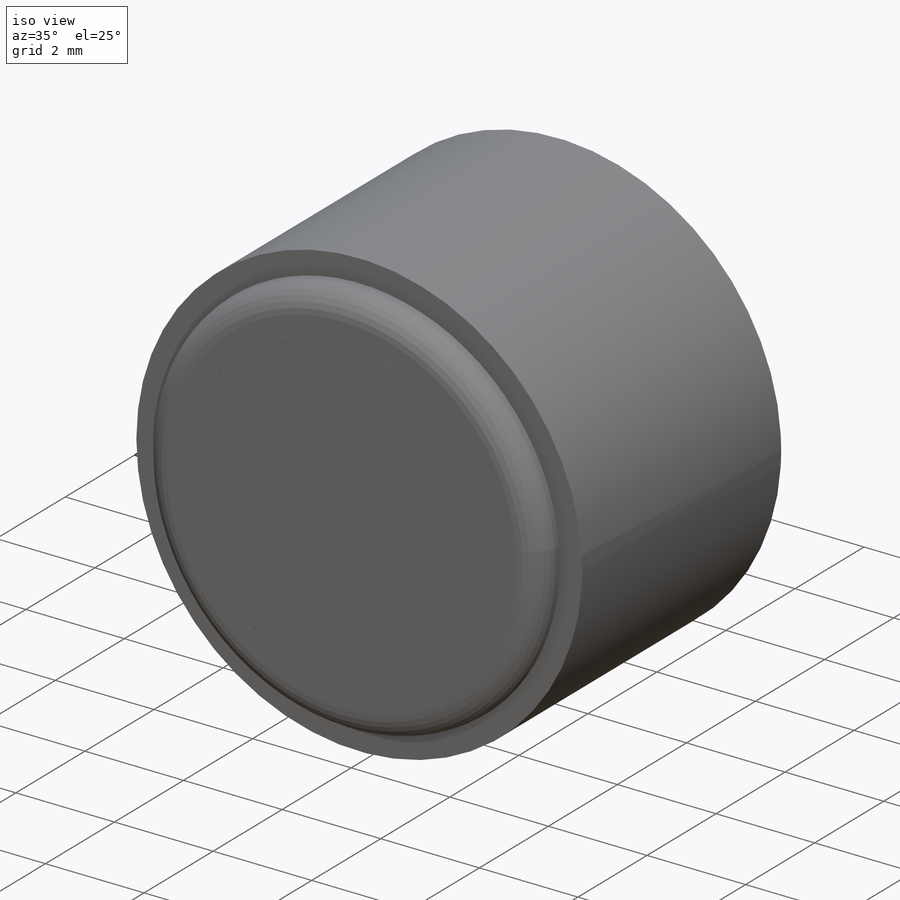
[diagram: iso view]
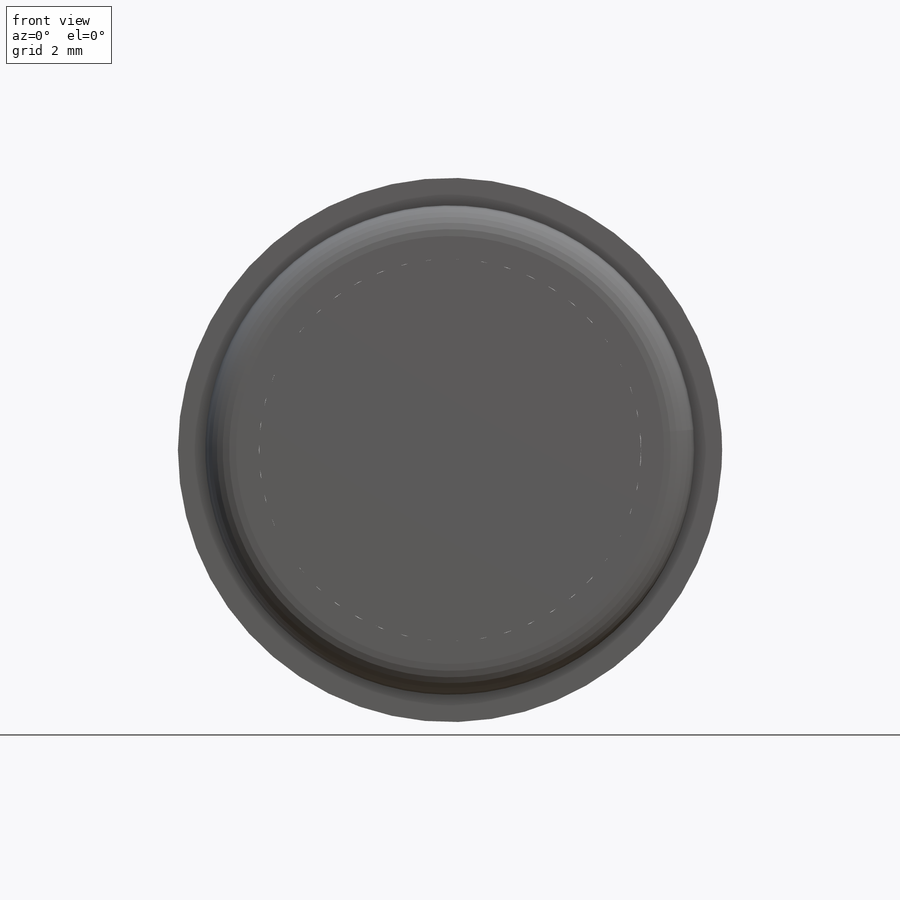
[diagram: front view]
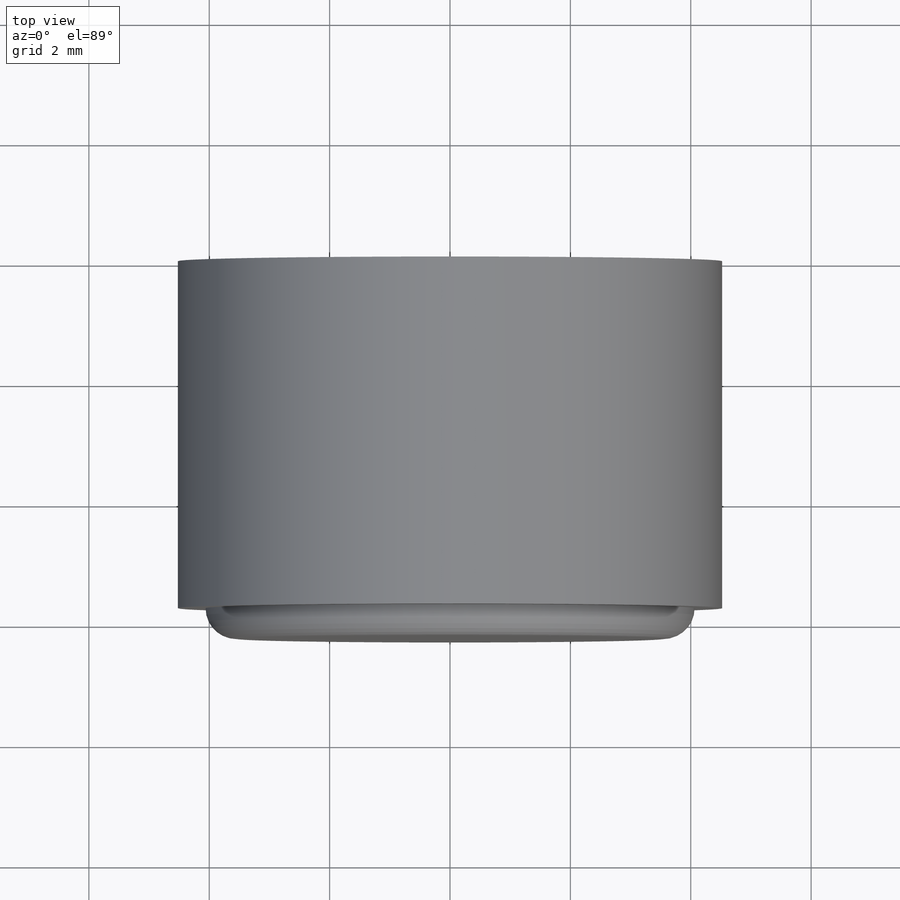
[diagram: top view]
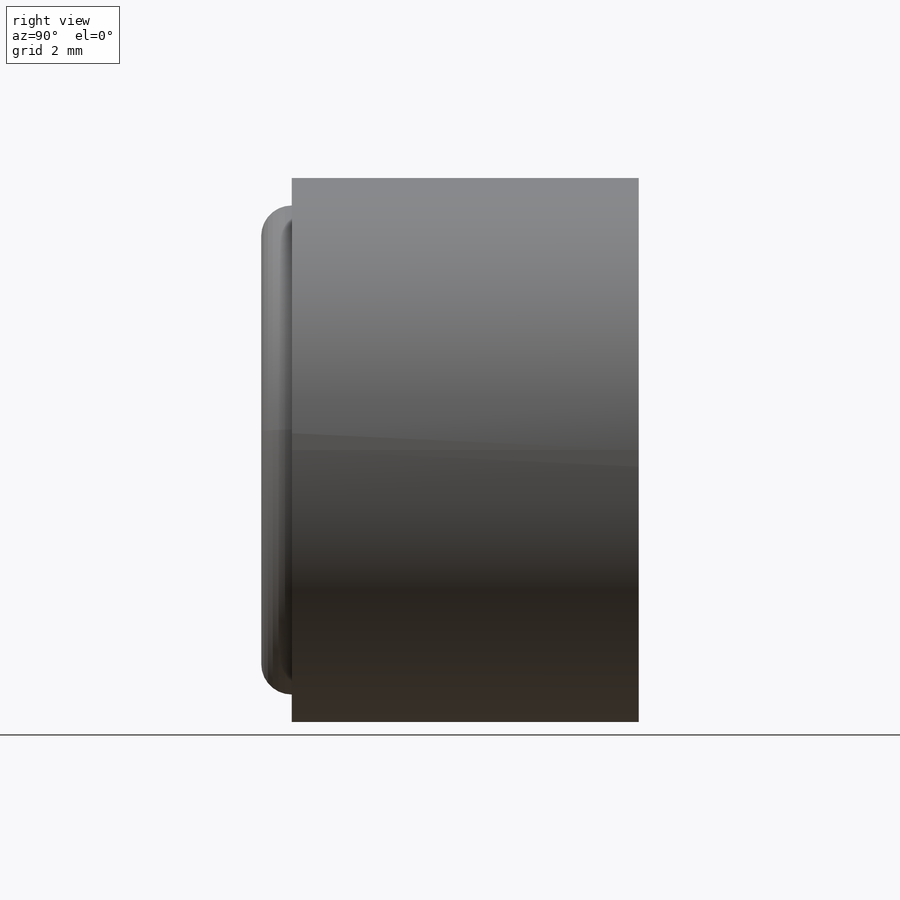
[diagram: right view]
SOLIDWORKS PART (.sldprt)
format: sldprt  version: not decoded by parser v0  size: 209,408 bytes
history: native  units: mm
features: sketch x3, extrude x3, material x1, fillet x1, shell x1 (+16 scaffold rows collapsed)
feature tree (25):
  scaffold x16  (default folders/planes/origin — collapsed)
  material  "Material <not specified>"
  sketch  "Sketch1"  dims[D1=9.0424mm D2=0.762mm]
  extrude  "Extrude1"  Depth=5.7658mm
  sketch  "Sketch2"  dims[D1=8.128mm D2=6.35mm]
  extrude  "Extrude2"  Depth=0.508mm
  fillet  "Fillet1"  Radius=0.508mm
  shell  "Shell1"  Thickness=0.254mm
  sketch  "Sketch3"
  extrude  "Extrude3"  [1 undecoded]
decode coverage: 6 of 8 modeling features carry decoded parameters
note: 1 parameter value undecoded
note: suppression state not decoded; provenance and decode notes live in map.json
